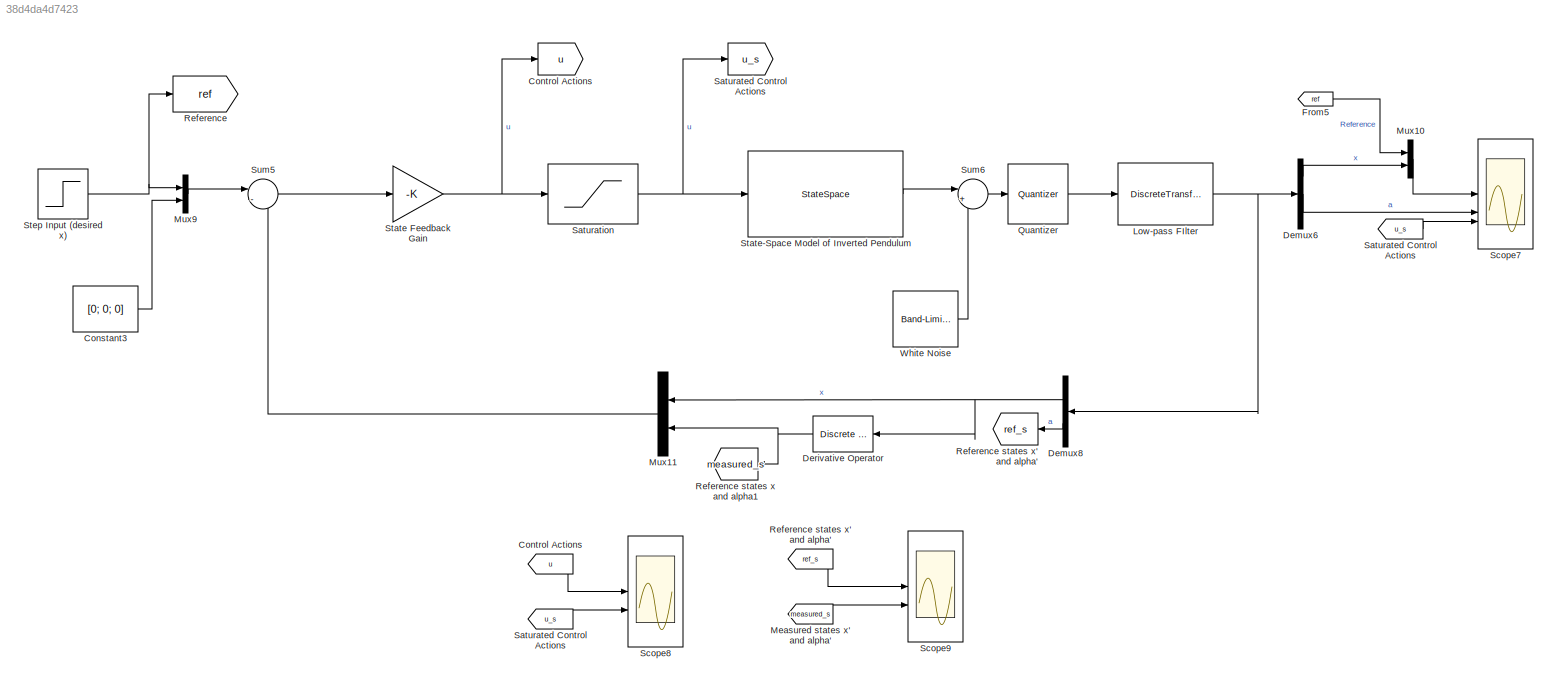
MODEL slx_38d4da4d7423
KIND model
CONFIG AbsTol = auto
CONFIG EnableMultiTasking = off
CONFIG FixedStep = auto
CONFIG MaxStep = auto
CONFIG MinStep = auto
CONFIG RelTol = 1e-3
CONFIG SampleTimeConstraint = Unconstrained
CONFIG SolverName = VariableStepAuto
CONFIG StartTime = 0.0
CONFIG StopTime = 80
BLOCK [Constant] Constant3
  SampleTime = Ts
  Value = [0; 0; 0]
BLOCK [Goto] Control  Actions
  GotoTag = u
BLOCK [From] Control Actions    
  GotoTag = u
BLOCK [Demux] Demux6
  Outputs = [1 1 2]
BLOCK [Demux] Demux8
  Outputs = [2  -1]
BLOCK [Reference] Derivative Operator  REF=simulink/Discrete/Discrete Derivative
  SourceBlock = simulink/Discrete/Discrete Derivative
  SourceType = Discrete Derivative
BLOCK [From] From5
  GotoTag = ref
BLOCK [DiscreteTransferFcn] Low-pass FIlter  
  Denominator = [1+wc*Ts, -1]
  InputPortMap = u0
  Numerator = [wc*Ts, 0]
BLOCK [From] Measured states x' and alpha' 
  GotoTag = measured_s
BLOCK [Mux] Mux10
  DisplayOption = bar
  Inputs = 2
BLOCK [Mux] Mux11
  DisplayOption = bar
  Inputs = 2
BLOCK [Mux] Mux9
  DisplayOption = bar
  Inputs = 2
BLOCK [Quantizer] Quantizer 
  QuantizationInterval = 20/(2^16)
BLOCK [Goto] Reference
  GotoTag = ref
BLOCK [Goto] Reference states x and alpha1
  GotoTag = measured_s
BLOCK [Goto] Reference states x' and alpha'
  GotoTag = ref_s
BLOCK [From] Reference states x' and alpha'   
  GotoTag = ref_s
BLOCK [Goto] Saturated Control Actions
  GotoTag = u_s
BLOCK [From] Saturated Control Actions   
  GotoTag = u_s
BLOCK [From] Saturated Control Actions    
  GotoTag = u_s
BLOCK [Saturate] Saturation 
  LowerLimit = -5
  UpperLimit = 5
BLOCK [Scope] Scope7
  Floating = off
  NumInputPorts = 3
  ScopeSpecificationString = Simulink.scopes.TimeScopeBlockCfg('CurrentConfiguration', extmgr.ConfigurationSet(extmgr.Configuration('Core','General UI',true,'FigureColor',[1 1 1]),extmgr.Configuration('Core','Source UI',true),extmgr.Configuration('Sources','WiredSimulink',true,'DataLogging',true,'DataLoggingVariableName','ScopeData5','DataLoggingSaveFormat','StructureWithTime'),extmgr.Configuration('Visuals','Time Domain',tru...<+3352ch>
BLOCK [Scope] Scope8
  Floating = off
  NumInputPorts = 2
  ScopeSpecificationString = Simulink.scopes.TimeScopeBlockCfg('CurrentConfiguration', extmgr.ConfigurationSet(extmgr.Configuration('Core','General UI',true,'DisplayFullSourceName',true),extmgr.Configuration('Core','Source UI',true),extmgr.Configuration('Sources','WiredSimulink',true,'DataLogging',true,'DataLoggingVariableName','ScopeData7','DataLoggingSaveFormat','StructureWithTime','SampleTime','Ts'),extmgr.Configuration('V...<+2430ch>
BLOCK [Scope] Scope9
  Floating = off
  NumInputPorts = 2
  ScopeSpecificationString = Simulink.scopes.TimeScopeBlockCfg('CurrentConfiguration', extmgr.ConfigurationSet(extmgr.Configuration('Core','General UI',true,'DisplayFullSourceName',true),extmgr.Configuration('Core','Source UI',true),extmgr.Configuration('Sources','WiredSimulink',true,'DataLogging',true,'DataLoggingVariableName','ScopeData8','DataLoggingSaveFormat','StructureWithTime','SampleTime','Ts'),extmgr.Configuration('V...<+2509ch>
BLOCK [Gain] State Feedback Gain
  Gain = -K
  Multiplication = Matrix(K*u)
BLOCK [StateSpace] State-Space Model of Inverted Pendulum 
  A = A
  B = B
  C = Cc
  D = Dc
  InitialCondition = 0
BLOCK [Step] Step Input (desired x)
  After = x_desired
  SampleTime = Ts
  Time = 20
BLOCK [Sum] Sum5
  Inputs = |-+
BLOCK [Sum] Sum6
  Inputs = |++
BLOCK [Reference] White Noise  REF=simulink/Sources/Band-Limited
White Noise
  SourceBlock = simulink/Sources/Band-Limited\nWhite Noise
  SourceType = Band-Limited White Noise.
LINE Constant3:1 -> Mux9:2
LINE Control Actions    :1 -> Scope8:1
LINE Demux6:1 -> Mux10:2
LINE Demux6:2 -> Scope7:2
NET Demux8:1 -> Derivative Operator:1, Mux11:1
LINE Demux8:2 -> Reference states x' and alpha':1
NET Derivative Operator:1 -> Mux11:2, Reference states x and alpha1:1
LINE From5:1 -> Mux10:1
NET Low-pass FIlter  :1 -> Demux6:1, Demux8:1
LINE Measured states x' and alpha' :1 -> Scope9:2
LINE Mux10:1 -> Scope7:1
LINE Mux11:1 -> Sum5:2
LINE Mux9:1 -> Sum5:1
LINE Quantizer :1 -> Low-pass FIlter  :1
LINE Reference states x' and alpha'   :1 -> Scope9:1
LINE Saturated Control Actions    :1 -> Scope8:2
LINE Saturated Control Actions   :1 -> Scope7:3
NET Saturation :1 -> Saturated Control Actions:1, State-Space Model of Inverted Pendulum :1
NET State Feedback Gain:1 -> Control  Actions:1, Saturation :1
LINE State-Space Model of Inverted Pendulum :1 -> Sum6:1
NET Step Input (desired x):1 -> Mux9:1, Reference:1
LINE Sum5:1 -> State Feedback Gain:1
LINE Sum6:1 -> Quantizer :1
LINE White Noise:1 -> Sum6:2
note: NET lines group one-source signal fan-out (src -> all destinations, sorted); 1:1 wires keep LINE
